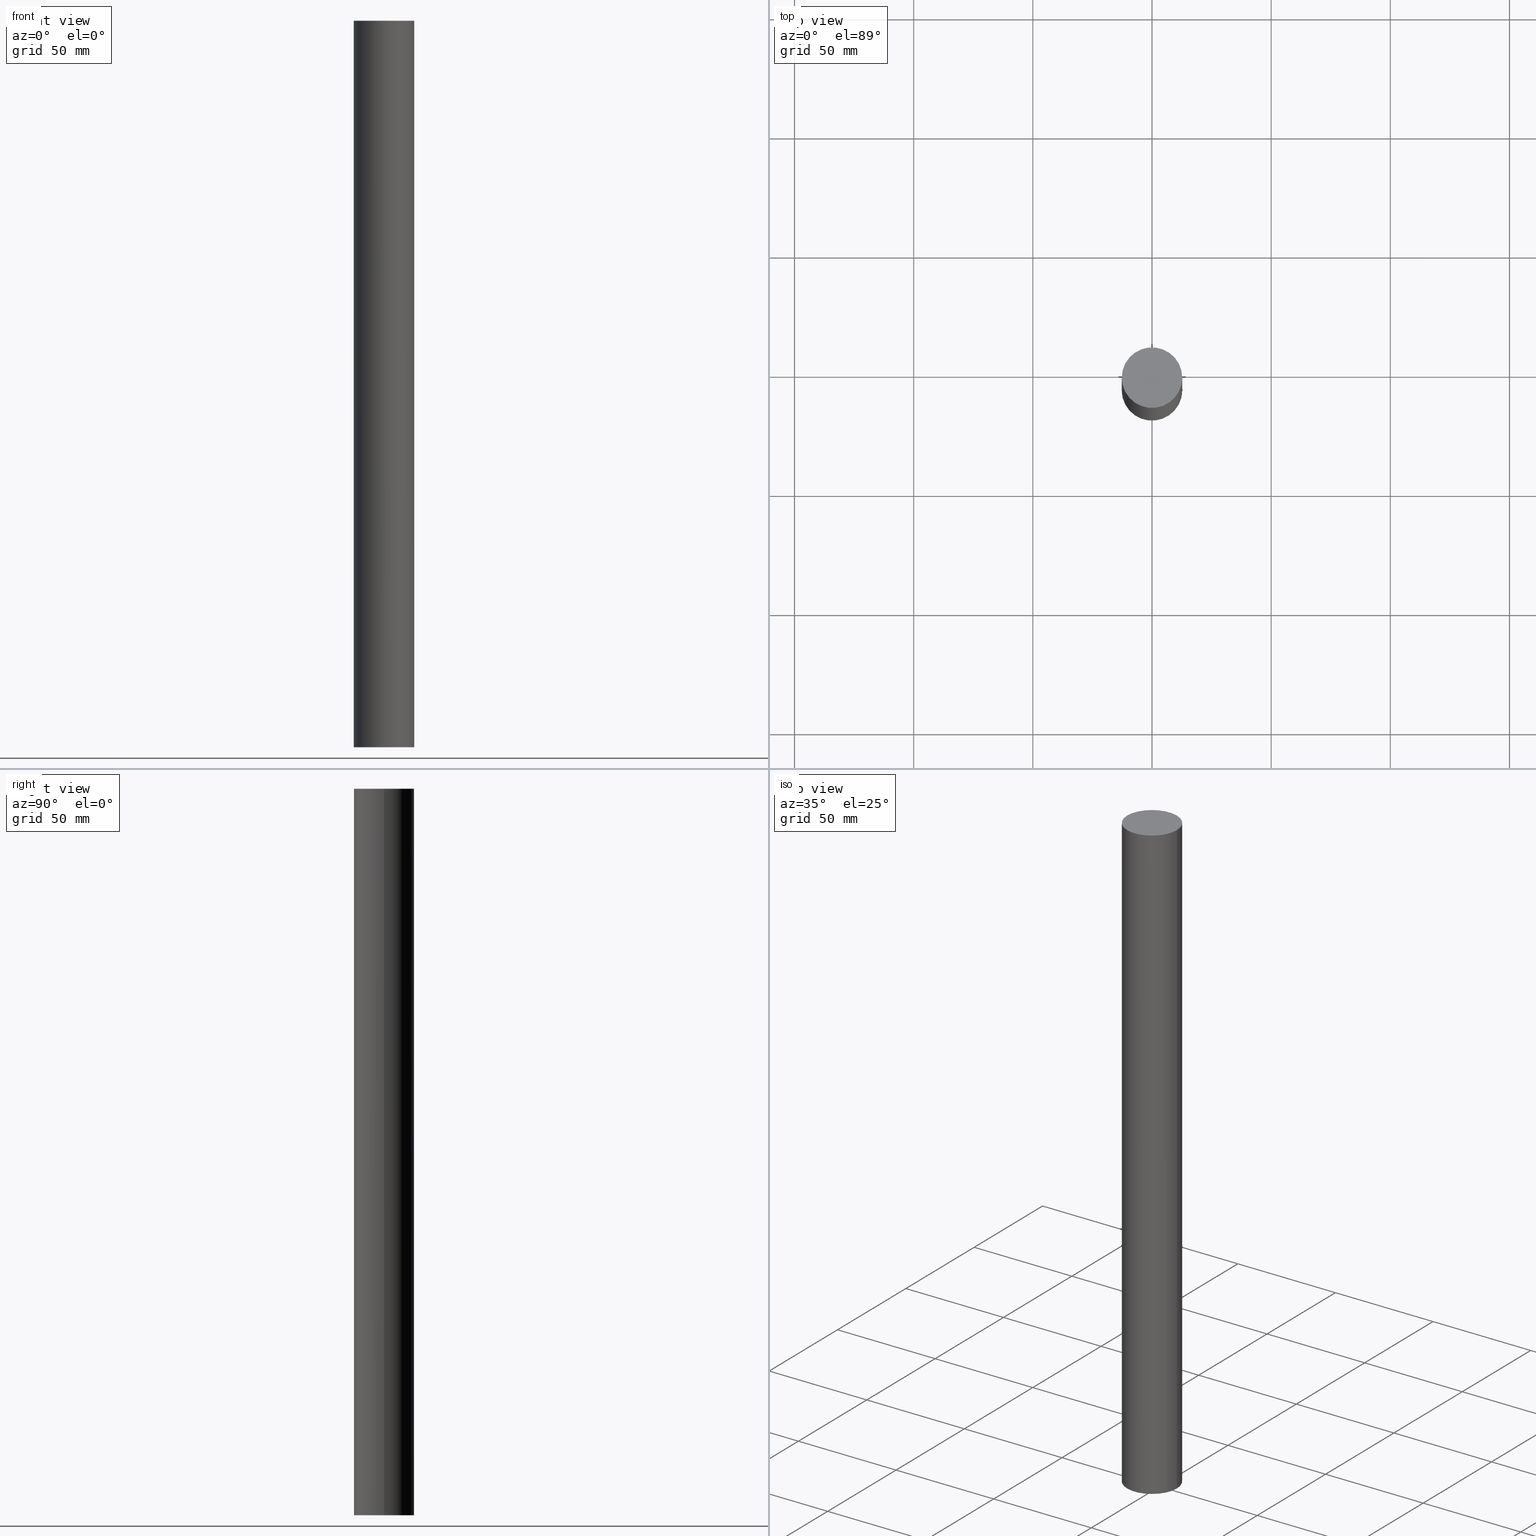
[diagram: canonical four-view strip — front | top / right | iso, engineering-drawing reading convention]
A machine part, canonical four-view strip (front | top / right | iso — engineering-drawing reading convention). The complete STEP part file that produces these views, byte-faithful:
ISO-10303-21;
HEADER;
FILE_DESCRIPTION (( 'STEP AP214' ),
    '1' );
FILE_NAME ('ShaftRailAssembly_9CEDDDFAA7.step',
    '2022-12-01T22:49:02',
    ( '' ),
    ( '' ),
    'SwSTEP 2.0',
    'SolidWorks 2019',
    '' );
FILE_SCHEMA (( 'AUTOMOTIVE_DESIGN' ));
ENDSEC;

DATA;
#1 = VERTEX_POINT ( 'NONE', #84 ) ;
#2 = SURFACE_STYLE_USAGE ( .BOTH. , #16 ) ;
#3 = AXIS2_PLACEMENT_3D ( 'NONE', #64, #136, #153 ) ;
#4 = PRODUCT_DEFINITION_FORMATION_WITH_SPECIFIED_SOURCE ( 'ANY', '', #106, .NOT_KNOWN. ) ;
#5 = DIRECTION ( 'NONE',  ( 0.000000000000000000, 0.000000000000000000, 1.000000000000000000 ) ) ;
#6 = CIRCLE ( 'NONE', #200, 0.5000000000000000000 ) ;
#7 = PRESENTATION_LAYER_ASSIGNMENT (  '', '', ( #267 ) ) ;
#8 = EDGE_CURVE ( 'NONE', #116, #52, #244, .T. ) ;
#9 = DIRECTION ( 'NONE',  ( 0.000000000000000000, 0.000000000000000000, 1.000000000000000000 ) ) ;
#10 = FILL_AREA_STYLE ('',( #257 ) ) ;
#11 = PLANE ( 'NONE',  #274 ) ;
#12 = FILL_AREA_STYLE ('',( #14 ) ) ;
#13 = APPLICATION_CONTEXT ( 'automotive_design' ) ;
#14 = FILL_AREA_STYLE_COLOUR ( '', #49 ) ;
#15 = ORIENTED_EDGE ( 'NONE', *, *, #71, .F. ) ;
#16 = SURFACE_SIDE_STYLE ('',( #145 ) ) ;
#17 =( LENGTH_UNIT ( ) NAMED_UNIT ( * ) SI_UNIT ( $, .METRE. ) );
#18 = MECHANICAL_DESIGN_GEOMETRIC_PRESENTATION_REPRESENTATION (  '', ( #162 ), #103 ) ;
#19 = CARTESIAN_POINT ( 'NONE',  ( 0.000000000000000000, 1.750000000000000000, 0.000000000000000000 ) ) ;
#20 =( NAMED_UNIT ( * ) SI_UNIT ( $, .STERADIAN. ) SOLID_ANGLE_UNIT ( ) );
#21 = SURFACE_SIDE_STYLE ('',( #157 ) ) ;
#22 =( NAMED_UNIT ( * ) SI_UNIT ( $, .STERADIAN. ) SOLID_ANGLE_UNIT ( ) );
#23 = VECTOR ( 'NONE', #179, 39.37007874015748143 ) ;
#24 =( NAMED_UNIT ( * ) SI_UNIT ( $, .STERADIAN. ) SOLID_ANGLE_UNIT ( ) );
#25 = PRODUCT_RELATED_PRODUCT_CATEGORY ( 'part', '', ( #106 ) ) ;
#26 = APPLICATION_CONTEXT ( 'automotive_design' ) ;
#27 = AXIS2_PLACEMENT_3D ( 'NONE', #250, #56, #146 ) ;
#28 = APPLICATION_PROTOCOL_DEFINITION ( 'draft international standard', 'automotive_design', 1998, #26 ) ;
#29 = SURFACE_STYLE_USAGE ( .BOTH. , #133 ) ;
#30 =( NAMED_UNIT ( * ) SI_UNIT ( $, .STERADIAN. ) SOLID_ANGLE_UNIT ( ) );
#31 = LENGTH_MEASURE_WITH_UNIT ( LENGTH_MEASURE( 0.02539999999999999897 ), #213 );
#32 = CIRCLE ( 'NONE', #194, 0.5000000000000000000 ) ;
#33 = STYLED_ITEM ( 'NONE', ( #147 ), #202 ) ;
#34 = LINE ( 'NONE', #99, #87 ) ;
#35 = EDGE_CURVE ( 'NONE', #1, #185, #6, .T. ) ;
#36 = CARTESIAN_POINT ( 'NONE',  ( -0.5000000000000000000, 1.750000000000000000, 0.000000000000000000 ) ) ;
#37 =( NAMED_UNIT ( * ) PLANE_ANGLE_UNIT ( ) SI_UNIT ( $, .RADIAN. ) );
#38 = APPLICATION_CONTEXT ( 'automotive_design' ) ;
#39 = PRODUCT_DEFINITION ( 'UNKNOWN', '', #46, #273 ) ;
#40 = CARTESIAN_POINT ( 'NONE',  ( 0.5000000000000000000, 1.750000000000000000, -11.99999999999999822 ) ) ;
#41 = PRODUCT_DEFINITION_CONTEXT ( 'detailed design', #13, 'design' ) ;
#42 = PRODUCT ( 'ShaftRailAssembly_9CEDDDFAA7', 'ShaftRailAssembly_9CEDDDFAA7', '', ( #108 ) ) ;
#43 = SHAPE_REPRESENTATION ( 'nHrZ377Nbn_CADModel_0', ( #265 ), #238 ) ;
#44 = PRODUCT_DEFINITION_SHAPE ( 'NONE', 'NONE',  #39 ) ;
#45 = CARTESIAN_POINT ( 'NONE',  ( 0.000000000000000000, 0.000000000000000000, 0.000000000000000000 ) ) ;
#46 = PRODUCT_DEFINITION_FORMATION_WITH_SPECIFIED_SOURCE ( 'ANY', '', #177, .NOT_KNOWN. ) ;
#47 = DIRECTION ( 'NONE',  ( 1.000000000000000000, 0.000000000000000000, -0.000000000000000000 ) ) ;
#48 = LENGTH_MEASURE_WITH_UNIT ( LENGTH_MEASURE( 0.02539999999999999897 ), #118 );
#49 = COLOUR_RGB ( '',0.7764705882352941346, 0.7764705882352941346, 0.8156862745098039102 ) ;
#50 = DIRECTION ( 'NONE',  ( 1.000000000000000000, 0.000000000000000000, 0.000000000000000000 ) ) ;
#51 = CARTESIAN_POINT ( 'NONE',  ( 0.000000000000000000, 1.750000000000000000, -11.99999999999999822 ) ) ;
#52 = VERTEX_POINT ( 'NONE', #36 ) ;
#53 =( NAMED_UNIT ( * ) PLANE_ANGLE_UNIT ( ) SI_UNIT ( $, .RADIAN. ) );
#54 = COLOUR_RGB ( '',0.8980392156862745390, 0.9176470588235293713, 0.9294117647058823817 ) ;
#55 = FACE_OUTER_BOUND ( 'NONE', #140, .T. ) ;
#56 = DIRECTION ( 'NONE',  ( 0.000000000000000000, 0.000000000000000000, 1.000000000000000000 ) ) ;
#57 = DIMENSIONAL_EXPONENTS ( 1.000000000000000000, 0.000000000000000000, 0.000000000000000000, 0.000000000000000000, 0.000000000000000000, 0.000000000000000000, 0.000000000000000000 ) ;
#58 = CARTESIAN_POINT ( 'NONE',  ( 0.000000000000000000, 1.750000000000000000, -11.99999999999999822 ) ) ;
#59 = SURFACE_STYLE_FILL_AREA ( #270 ) ;
#60 =( GEOMETRIC_REPRESENTATION_CONTEXT ( 3 ) GLOBAL_UNCERTAINTY_ASSIGNED_CONTEXT ( ( #189 ) ) GLOBAL_UNIT_ASSIGNED_CONTEXT ( ( #159, #221, #243 ) ) REPRESENTATION_CONTEXT ( 'NONE', 'WORKASPACE' ) );
#61 = LENGTH_MEASURE_WITH_UNIT ( LENGTH_MEASURE( 0.02539999999999999897 ), #216 );
#62 = DIMENSIONAL_EXPONENTS ( 1.000000000000000000, 0.000000000000000000, 0.000000000000000000, 0.000000000000000000, 0.000000000000000000, 0.000000000000000000, 0.000000000000000000 ) ;
#63 =( LENGTH_UNIT ( ) NAMED_UNIT ( * ) SI_UNIT ( $, .METRE. ) );
#64 = CARTESIAN_POINT ( 'NONE',  ( 0.000000000000000000, 1.750000000000000000, -11.99999999999999822 ) ) ;
#65 =( GEOMETRIC_REPRESENTATION_CONTEXT ( 3 ) GLOBAL_UNCERTAINTY_ASSIGNED_CONTEXT ( ( #209 ) ) GLOBAL_UNIT_ASSIGNED_CONTEXT ( ( #215, #128, #269 ) ) REPRESENTATION_CONTEXT ( 'NONE', 'WORKASPACE' ) );
#66 = CARTESIAN_POINT ( 'NONE',  ( 0.000000000000000000, 1.750000000000000000, 0.000000000000000000 ) ) ;
#67 = APPLICATION_PROTOCOL_DEFINITION ( 'draft international standard', 'automotive_design', 1998, #263 ) ;
#68 = FILL_AREA_STYLE_COLOUR ( '', #183 ) ;
#69 = DIRECTION ( 'NONE',  ( 0.000000000000000000, 0.000000000000000000, 1.000000000000000000 ) ) ;
#70 = PRESENTATION_STYLE_ASSIGNMENT (( #77 ) ) ;
#71 = EDGE_CURVE ( 'NONE', #185, #116, #34, .T. ) ;
#72 = COLOUR_RGB ( '',0.7764705882352941346, 0.7764705882352941346, 0.8156862745098039102 ) ;
#73 = AXIS2_PLACEMENT_3D ( 'NONE', #115, #69, #50 ) ;
#74 = LENGTH_MEASURE_WITH_UNIT ( LENGTH_MEASURE( 0.02539999999999999897 ), #97 );
#75 = ADVANCED_BREP_SHAPE_REPRESENTATION ( '', ( #235, #265 ), #238 ) ;
#76 = LENGTH_MEASURE_WITH_UNIT ( LENGTH_MEASURE( 0.02539999999999999897 ), #17 );
#77 = SURFACE_STYLE_USAGE ( .BOTH. , #224 ) ;
#78 = ORIENTED_EDGE ( 'NONE', *, *, #165, .T. ) ;
#79 = ADVANCED_FACE ( 'NONE', ( #55 ), #212, .T. ) ;
#80 = PRODUCT_DEFINITION_SHAPE ( 'NONE', 'NONE',  #186 ) ;
#81 = UNCERTAINTY_MEASURE_WITH_UNIT (LENGTH_MEASURE( 1.000000000000000082E-05 ), #121, 'distance_accuracy_value', 'NONE');
#82 =( GEOMETRIC_REPRESENTATION_CONTEXT ( 3 ) GLOBAL_UNCERTAINTY_ASSIGNED_CONTEXT ( ( #127 ) ) GLOBAL_UNIT_ASSIGNED_CONTEXT ( ( #246, #161, #30 ) ) REPRESENTATION_CONTEXT ( 'NONE', 'WORKASPACE' ) );
#83 = DIRECTION ( 'NONE',  ( 0.000000000000000000, 0.000000000000000000, 1.000000000000000000 ) ) ;
#84 = CARTESIAN_POINT ( 'NONE',  ( -0.5000000000000000000, 1.750000000000000000, -11.99999999999999822 ) ) ;
#85 = DIMENSIONAL_EXPONENTS ( 1.000000000000000000, 0.000000000000000000, 0.000000000000000000, 0.000000000000000000, 0.000000000000000000, 0.000000000000000000, 0.000000000000000000 ) ;
#86 = APPLICATION_CONTEXT ( 'automotive_design' ) ;
#87 = VECTOR ( 'NONE', #268, 39.37007874015748143 ) ;
#88 = DIRECTION ( 'NONE',  ( 1.000000000000000000, 0.000000000000000000, 0.000000000000000000 ) ) ;
#89 = SHAPE_DEFINITION_REPRESENTATION ( #80, #259 ) ;
#90 = APPLICATION_PROTOCOL_DEFINITION ( 'draft international standard', 'automotive_design', 1998, #86 ) ;
#91 = CARTESIAN_POINT ( 'NONE',  ( -0.5000000000000000000, 1.750000000000000000, -11.99999999999999822 ) ) ;
#92 = PRODUCT_DEFINITION ( 'UNKNOWN', '', #4, #101 ) ;
#93 = CYLINDRICAL_SURFACE ( 'NONE', #73, 0.5000000000000000000 ) ;
#94 = FACE_OUTER_BOUND ( 'NONE', #120, .T. ) ;
#95 =( REPRESENTATION_RELATIONSHIP ('NONE','NONE', #259, #43 ) REPRESENTATION_RELATIONSHIP_WITH_TRANSFORMATION ( #264 )SHAPE_REPRESENTATION_RELATIONSHIP( ) );
#96 = COLOUR_RGB ( '',0.8980392156862745390, 0.9176470588235293713, 0.9294117647058823817 ) ;
#97 =( LENGTH_UNIT ( ) NAMED_UNIT ( * ) SI_UNIT ( $, .METRE. ) );
#98 = DIMENSIONAL_EXPONENTS ( 1.000000000000000000, 0.000000000000000000, 0.000000000000000000, 0.000000000000000000, 0.000000000000000000, 0.000000000000000000, 0.000000000000000000 ) ;
#99 = CARTESIAN_POINT ( 'NONE',  ( 0.5000000000000000000, 1.750000000000000000, -11.99999999999999822 ) ) ;
#100 = LENGTH_MEASURE_WITH_UNIT ( LENGTH_MEASURE( 0.02539999999999999897 ), #126 );
#101 = PRODUCT_DEFINITION_CONTEXT ( 'detailed design', #38, 'design' ) ;
#102 = SURFACE_STYLE_USAGE ( .BOTH. , #214 ) ;
#103 =( GEOMETRIC_REPRESENTATION_CONTEXT ( 3 ) GLOBAL_UNCERTAINTY_ASSIGNED_CONTEXT ( ( #180 ) ) GLOBAL_UNIT_ASSIGNED_CONTEXT ( ( #171, #37, #122 ) ) REPRESENTATION_CONTEXT ( 'NONE', 'WORKASPACE' ) );
#104 = EDGE_LOOP ( 'NONE', ( #204, #229 ) ) ;
#105 = LENGTH_MEASURE_WITH_UNIT ( LENGTH_MEASURE( 0.02539999999999999897 ), #123 );
#106 = PRODUCT ( 'nHrZ377Nbn_CADModel_0', 'nHrZ377Nbn_CADModel_0', '', ( #217 ) ) ;
#107 = LINE ( 'NONE', #91, #23 ) ;
#108 = PRODUCT_CONTEXT ( 'NONE', #119, 'mechanical' ) ;
#109 = UNCERTAINTY_MEASURE_WITH_UNIT (LENGTH_MEASURE( 1.000000000000000082E-05 ), #114, 'distance_accuracy_value', 'NONE');
#110 = FACE_OUTER_BOUND ( 'NONE', #104, .T. ) ;
#111 =( NAMED_UNIT ( * ) PLANE_ANGLE_UNIT ( ) SI_UNIT ( $, .RADIAN. ) );
#112 = ORIENTED_EDGE ( 'NONE', *, *, #8, .T. ) ;
#113 = ADVANCED_FACE ( 'NONE', ( #110 ), #193, .F. ) ;
#114 =( CONVERSION_BASED_UNIT ( 'INCH', #74 ) LENGTH_UNIT ( ) NAMED_UNIT ( #271 ) );
#115 = CARTESIAN_POINT ( 'NONE',  ( 0.000000000000000000, 1.750000000000000000, -11.99999999999999822 ) ) ;
#116 = VERTEX_POINT ( 'NONE', #236 ) ;
#117 =( GEOMETRIC_REPRESENTATION_CONTEXT ( 3 ) GLOBAL_UNCERTAINTY_ASSIGNED_CONTEXT ( ( #251 ) ) GLOBAL_UNIT_ASSIGNED_CONTEXT ( ( #240, #124, #22 ) ) REPRESENTATION_CONTEXT ( 'NONE', 'WORKASPACE' ) );
#118 =( LENGTH_UNIT ( ) NAMED_UNIT ( * ) SI_UNIT ( $, .METRE. ) );
#119 = APPLICATION_CONTEXT ( 'automotive_design' ) ;
#120 = EDGE_LOOP ( 'NONE', ( #112, #78 ) ) ;
#121 =( CONVERSION_BASED_UNIT ( 'INCH', #234 ) LENGTH_UNIT ( ) NAMED_UNIT ( #85 ) );
#122 =( NAMED_UNIT ( * ) SI_UNIT ( $, .STERADIAN. ) SOLID_ANGLE_UNIT ( ) );
#123 =( LENGTH_UNIT ( ) NAMED_UNIT ( * ) SI_UNIT ( $, .METRE. ) );
#124 =( NAMED_UNIT ( * ) PLANE_ANGLE_UNIT ( ) SI_UNIT ( $, .RADIAN. ) );
#125 = CARTESIAN_POINT ( 'NONE',  ( 0.000000000000000000, 1.750000000000000000, -11.99999999999999822 ) ) ;
#126 =( LENGTH_UNIT ( ) NAMED_UNIT ( * ) SI_UNIT ( $, .METRE. ) );
#127 = UNCERTAINTY_MEASURE_WITH_UNIT (LENGTH_MEASURE( 1.000000000000000082E-05 ), #246, 'distance_accuracy_value', 'NONE');
#128 =( NAMED_UNIT ( * ) PLANE_ANGLE_UNIT ( ) SI_UNIT ( $, .RADIAN. ) );
#129 = FACE_OUTER_BOUND ( 'NONE', #247, .T. ) ;
#130 = COLOUR_RGB ( '',0.7764705882352941346, 0.7764705882352941346, 0.8156862745098039102 ) ;
#131 = DIRECTION ( 'NONE',  ( 0.000000000000000000, 0.000000000000000000, 1.000000000000000000 ) ) ;
#132 = DIRECTION ( 'NONE',  ( 1.000000000000000000, 0.000000000000000000, 0.000000000000000000 ) ) ;
#133 = SURFACE_SIDE_STYLE ('',( #181 ) ) ;
#134 =( GEOMETRIC_REPRESENTATION_CONTEXT ( 3 ) GLOBAL_UNCERTAINTY_ASSIGNED_CONTEXT ( ( #109 ) ) GLOBAL_UNIT_ASSIGNED_CONTEXT ( ( #114, #111, #182 ) ) REPRESENTATION_CONTEXT ( 'NONE', 'WORKASPACE' ) );
#135 = PRODUCT_CONTEXT ( 'NONE', #263, 'mechanical' ) ;
#136 = DIRECTION ( 'NONE',  ( 0.000000000000000000, 0.000000000000000000, 1.000000000000000000 ) ) ;
#137 = PRODUCT_RELATED_PRODUCT_CATEGORY ( 'part', '', ( #42 ) ) ;
#138 = SURFACE_SIDE_STYLE ('',( #205 ) ) ;
#139 = AXIS2_PLACEMENT_3D ( 'NONE', #45, #131, #132 ) ;
#140 = EDGE_LOOP ( 'NONE', ( #187, #225, #210, #174 ) ) ;
#141 = FILL_AREA_STYLE_COLOUR ( '', #54 ) ;
#142 = DIRECTION ( 'NONE',  ( 1.000000000000000000, 0.000000000000000000, 0.000000000000000000 ) ) ;
#143 = AXIS2_PLACEMENT_3D ( 'NONE', #58, #9, #88 ) ;
#144 = DIRECTION ( 'NONE',  ( 1.000000000000000000, 0.000000000000000000, 0.000000000000000000 ) ) ;
#145 = SURFACE_STYLE_FILL_AREA ( #149 ) ;
#146 = DIRECTION ( 'NONE',  ( 1.000000000000000000, 0.000000000000000000, 0.000000000000000000 ) ) ;
#147 = PRESENTATION_STYLE_ASSIGNMENT (( #29 ) ) ;
#148 = PRESENTATION_STYLE_ASSIGNMENT (( #102 ) ) ;
#149 = FILL_AREA_STYLE ('',( #208 ) ) ;
#150 = PRESENTATION_LAYER_ASSIGNMENT (  '', '', ( #188 ) ) ;
#151 = SURFACE_STYLE_USAGE ( .BOTH. , #21 ) ;
#152 = PRESENTATION_STYLE_ASSIGNMENT (( #2 ) ) ;
#153 = DIRECTION ( 'NONE',  ( 1.000000000000000000, 0.000000000000000000, -0.000000000000000000 ) ) ;
#154 = PRODUCT_DEFINITION_SHAPE ( 'NONE', 'NONE',  #276 ) ;
#155 =( NAMED_UNIT ( * ) PLANE_ANGLE_UNIT ( ) SI_UNIT ( $, .RADIAN. ) );
#156 = FILL_AREA_STYLE ('',( #68 ) ) ;
#157 = SURFACE_STYLE_FILL_AREA ( #10 ) ;
#158 = PRODUCT_DEFINITION_FORMATION_WITH_SPECIFIED_SOURCE ( 'ANY', '', #42, .NOT_KNOWN. ) ;
#159 =( CONVERSION_BASED_UNIT ( 'INCH', #31 ) LENGTH_UNIT ( ) NAMED_UNIT ( #172 ) );
#160 = ORIENTED_EDGE ( 'NONE', *, *, #170, .T. ) ;
#161 =( NAMED_UNIT ( * ) PLANE_ANGLE_UNIT ( ) SI_UNIT ( $, .RADIAN. ) );
#162 = STYLED_ITEM ( 'NONE', ( #148 ), #79 ) ;
#163 = MECHANICAL_DESIGN_GEOMETRIC_PRESENTATION_REPRESENTATION (  '', ( #188 ), #134 ) ;
#164 = CARTESIAN_POINT ( 'NONE',  ( 0.000000000000000000, 1.750000000000000000, 0.000000000000000000 ) ) ;
#165 = EDGE_CURVE ( 'NONE', #52, #116, #32, .T. ) ;
#166 = PRODUCT_DEFINITION_SHAPE ( 'NONE', 'NONE',  #92 ) ;
#167 = ORIENTED_EDGE ( 'NONE', *, *, #8, .F. ) ;
#168 = PRESENTATION_LAYER_ASSIGNMENT (  '', '', ( #255 ) ) ;
#169 = SHAPE_REPRESENTATION_RELATIONSHIP ( 'NONE' , 'NONE' ,  #43, #75 ) ;
#170 = EDGE_CURVE ( 'NONE', #1, #52, #107, .T. ) ;
#171 =( CONVERSION_BASED_UNIT ( 'INCH', #76 ) LENGTH_UNIT ( ) NAMED_UNIT ( #192 ) );
#172 = DIMENSIONAL_EXPONENTS ( 1.000000000000000000, 0.000000000000000000, 0.000000000000000000, 0.000000000000000000, 0.000000000000000000, 0.000000000000000000, 0.000000000000000000 ) ;
#173 = DIRECTION ( 'NONE',  ( 1.000000000000000000, 0.000000000000000000, 0.000000000000000000 ) ) ;
#174 = ORIENTED_EDGE ( 'NONE', *, *, #165, .F. ) ;
#175 = DIRECTION ( 'NONE',  ( 0.000000000000000000, 0.000000000000000000, 1.000000000000000000 ) ) ;
#176 = AXIS2_PLACEMENT_3D ( 'NONE', #219, #5, #237 ) ;
#177 = PRODUCT ( 'nHrZ377Nbn_CADModel_0', 'nHrZ377Nbn_CADModel_0', '', ( #135 ) ) ;
#178 = DIRECTION ( 'NONE',  ( 1.000000000000000000, 0.000000000000000000, 0.000000000000000000 ) ) ;
#179 = DIRECTION ( 'NONE',  ( 0.000000000000000000, 0.000000000000000000, 1.000000000000000000 ) ) ;
#180 = UNCERTAINTY_MEASURE_WITH_UNIT (LENGTH_MEASURE( 1.000000000000000082E-05 ), #171, 'distance_accuracy_value', 'NONE');
#181 = SURFACE_STYLE_FILL_AREA ( #156 ) ;
#182 =( NAMED_UNIT ( * ) SI_UNIT ( $, .STERADIAN. ) SOLID_ANGLE_UNIT ( ) );
#183 = COLOUR_RGB ( '',0.7764705882352941346, 0.7764705882352941346, 0.8156862745098039102 ) ;
#184 = DIRECTION ( 'NONE',  ( 0.000000000000000000, 0.000000000000000000, 1.000000000000000000 ) ) ;
#185 = VERTEX_POINT ( 'NONE', #40 ) ;
#186 = PRODUCT_DEFINITION ( 'UNKNOWN', '', #158, #41 ) ;
#187 = ORIENTED_EDGE ( 'NONE', *, *, #170, .F. ) ;
#188 = STYLED_ITEM ( 'NONE', ( #242 ), #235 ) ;
#189 = UNCERTAINTY_MEASURE_WITH_UNIT (LENGTH_MEASURE( 1.000000000000000082E-05 ), #159, 'distance_accuracy_value', 'NONE');
#190 = DIRECTION ( 'NONE',  ( 1.000000000000000000, 0.000000000000000000, 0.000000000000000000 ) ) ;
#191 = DIRECTION ( 'NONE',  ( 0.000000000000000000, 0.000000000000000000, 1.000000000000000000 ) ) ;
#192 = DIMENSIONAL_EXPONENTS ( 1.000000000000000000, 0.000000000000000000, 0.000000000000000000, 0.000000000000000000, 0.000000000000000000, 0.000000000000000000, 0.000000000000000000 ) ;
#193 = PLANE ( 'NONE',  #3 ) ;
#194 = AXIS2_PLACEMENT_3D ( 'NONE', #66, #198, #178 ) ;
#195 = PRESENTATION_LAYER_ASSIGNMENT (  '', '', ( #256 ) ) ;
#196 = APPLICATION_PROTOCOL_DEFINITION ( 'draft international standard', 'automotive_design', 1998, #13 ) ;
#197 = CONTEXT_DEPENDENT_SHAPE_REPRESENTATION ( #95, #154 ) ;
#198 = DIRECTION ( 'NONE',  ( 0.000000000000000000, 0.000000000000000000, 1.000000000000000000 ) ) ;
#199 = AXIS2_PLACEMENT_3D ( 'NONE', #275, #83, #173 ) ;
#200 = AXIS2_PLACEMENT_3D ( 'NONE', #125, #252, #190 ) ;
#201 = PRESENTATION_LAYER_ASSIGNMENT (  '', '', ( #33 ) ) ;
#202 = ADVANCED_FACE ( 'NONE', ( #129 ), #93, .T. ) ;
#203 =( GEOMETRIC_REPRESENTATION_CONTEXT ( 3 ) GLOBAL_UNCERTAINTY_ASSIGNED_CONTEXT ( ( #239 ) ) GLOBAL_UNIT_ASSIGNED_CONTEXT ( ( #253, #155, #24 ) ) REPRESENTATION_CONTEXT ( 'NONE', 'WORKASPACE' ) );
#204 = ORIENTED_EDGE ( 'NONE', *, *, #258, .F. ) ;
#205 = SURFACE_STYLE_FILL_AREA ( #226 ) ;
#206 = ADVANCED_FACE ( 'NONE', ( #94 ), #11, .T. ) ;
#207 = DIRECTION ( 'NONE',  ( 0.000000000000000000, 0.000000000000000000, 1.000000000000000000 ) ) ;
#208 = FILL_AREA_STYLE_COLOUR ( '', #96 ) ;
#209 = UNCERTAINTY_MEASURE_WITH_UNIT (LENGTH_MEASURE( 1.000000000000000082E-05 ), #215, 'distance_accuracy_value', 'NONE');
#210 = ORIENTED_EDGE ( 'NONE', *, *, #71, .T. ) ;
#211 = AXIS2_PLACEMENT_3D ( 'NONE', #19, #207, #142 ) ;
#212 = CYLINDRICAL_SURFACE ( 'NONE', #143, 0.5000000000000000000 ) ;
#213 =( LENGTH_UNIT ( ) NAMED_UNIT ( * ) SI_UNIT ( $, .METRE. ) );
#214 = SURFACE_SIDE_STYLE ('',( #59 ) ) ;
#215 =( CONVERSION_BASED_UNIT ( 'INCH', #100 ) LENGTH_UNIT ( ) NAMED_UNIT ( #98 ) );
#216 =( LENGTH_UNIT ( ) NAMED_UNIT ( * ) SI_UNIT ( $, .METRE. ) );
#217 = PRODUCT_CONTEXT ( 'NONE', #26, 'mechanical' ) ;
#218 = CIRCLE ( 'NONE', #241, 0.5000000000000000000 ) ;
#219 = CARTESIAN_POINT ( 'NONE',  ( 0.000000000000000000, 0.000000000000000000, 0.000000000000000000 ) ) ;
#220 = APPLICATION_PROTOCOL_DEFINITION ( 'draft international standard', 'automotive_design', 1998, #38 ) ;
#221 =( NAMED_UNIT ( * ) PLANE_ANGLE_UNIT ( ) SI_UNIT ( $, .RADIAN. ) );
#222 = SURFACE_STYLE_FILL_AREA ( #12 ) ;
#223 = SURFACE_STYLE_USAGE ( .BOTH. , #138 ) ;
#224 = SURFACE_SIDE_STYLE ('',( #222 ) ) ;
#225 = ORIENTED_EDGE ( 'NONE', *, *, #35, .T. ) ;
#226 = FILL_AREA_STYLE ('',( #141 ) ) ;
#227 = CLOSED_SHELL ( 'NONE', ( #202, #79, #113, #206 ) ) ;
#228 = DIRECTION ( 'NONE',  ( 1.000000000000000000, 0.000000000000000000, 0.000000000000000000 ) ) ;
#229 = ORIENTED_EDGE ( 'NONE', *, *, #35, .F. ) ;
#230 = FILL_AREA_STYLE_COLOUR ( '', #72 ) ;
#231 = MECHANICAL_DESIGN_GEOMETRIC_PRESENTATION_REPRESENTATION (  '', ( #267 ), #82 ) ;
#232 = PRODUCT_RELATED_PRODUCT_CATEGORY ( 'part', '', ( #177 ) ) ;
#233 = PRESENTATION_STYLE_ASSIGNMENT (( #151 ) ) ;
#234 = LENGTH_MEASURE_WITH_UNIT ( LENGTH_MEASURE( 0.02539999999999999897 ), #63 );
#235 = MANIFOLD_SOLID_BREP ( 'S0_a_shaft-1/S0_a_shaft-1-solid1', #227 ) ;
#236 = CARTESIAN_POINT ( 'NONE',  ( 0.5000000000000000000, 1.750000000000000000, 0.000000000000000000 ) ) ;
#237 = DIRECTION ( 'NONE',  ( 1.000000000000000000, 0.000000000000000000, 0.000000000000000000 ) ) ;
#238 =( GEOMETRIC_REPRESENTATION_CONTEXT ( 3 ) GLOBAL_UNCERTAINTY_ASSIGNED_CONTEXT ( ( #81 ) ) GLOBAL_UNIT_ASSIGNED_CONTEXT ( ( #121, #53, #20 ) ) REPRESENTATION_CONTEXT ( 'NONE', 'WORKASPACE' ) );
#239 = UNCERTAINTY_MEASURE_WITH_UNIT (LENGTH_MEASURE( 1.000000000000000082E-05 ), #253, 'distance_accuracy_value', 'NONE');
#240 =( CONVERSION_BASED_UNIT ( 'INCH', #61 ) LENGTH_UNIT ( ) NAMED_UNIT ( #57 ) );
#241 = AXIS2_PLACEMENT_3D ( 'NONE', #51, #175, #228 ) ;
#242 = PRESENTATION_STYLE_ASSIGNMENT (( #223 ) ) ;
#243 =( NAMED_UNIT ( * ) SI_UNIT ( $, .STERADIAN. ) SOLID_ANGLE_UNIT ( ) );
#244 = CIRCLE ( 'NONE', #211, 0.5000000000000000000 ) ;
#245 = MECHANICAL_DESIGN_GEOMETRIC_PRESENTATION_REPRESENTATION (  '', ( #33 ), #60 ) ;
#246 =( CONVERSION_BASED_UNIT ( 'INCH', #48 ) LENGTH_UNIT ( ) NAMED_UNIT ( #254 ) );
#247 = EDGE_LOOP ( 'NONE', ( #266, #160, #167, #15 ) ) ;
#248 = PRESENTATION_LAYER_ASSIGNMENT (  '', '', ( #162 ) ) ;
#249 = CARTESIAN_POINT ( 'NONE',  ( 0.000000000000000000, 0.000000000000000000, 0.000000000000000000 ) ) ;
#250 = CARTESIAN_POINT ( 'NONE',  ( 0.000000000000000000, 0.000000000000000000, 0.000000000000000000 ) ) ;
#251 = UNCERTAINTY_MEASURE_WITH_UNIT (LENGTH_MEASURE( 1.000000000000000082E-05 ), #240, 'distance_accuracy_value', 'NONE');
#252 = DIRECTION ( 'NONE',  ( 0.000000000000000000, 0.000000000000000000, 1.000000000000000000 ) ) ;
#253 =( CONVERSION_BASED_UNIT ( 'INCH', #105 ) LENGTH_UNIT ( ) NAMED_UNIT ( #62 ) );
#254 = DIMENSIONAL_EXPONENTS ( 1.000000000000000000, 0.000000000000000000, 0.000000000000000000, 0.000000000000000000, 0.000000000000000000, 0.000000000000000000, 0.000000000000000000 ) ;
#255 = STYLED_ITEM ( 'NONE', ( #233 ), #113 ) ;
#256 = STYLED_ITEM ( 'NONE', ( #152 ), #75 ) ;
#257 = FILL_AREA_STYLE_COLOUR ( '', #130 ) ;
#258 = EDGE_CURVE ( 'NONE', #185, #1, #218, .T. ) ;
#259 = SHAPE_REPRESENTATION ( 'ShaftRailAssembly_9CEDDDFAA7', ( #139, #27 ), #203 ) ;
#260 = MECHANICAL_DESIGN_GEOMETRIC_PRESENTATION_REPRESENTATION (  '', ( #256 ), #65 ) ;
#261 = APPLICATION_PROTOCOL_DEFINITION ( 'draft international standard', 'automotive_design', 1998, #119 ) ;
#262 = SHAPE_DEFINITION_REPRESENTATION ( #44, #43 ) ;
#263 = APPLICATION_CONTEXT ( 'automotive_design' ) ;
#264 = ITEM_DEFINED_TRANSFORMATION ( 'NONE', 'NONE', #27,  #265 ) ;
#265 = AXIS2_PLACEMENT_3D ( 'NONE', #249, #191, #144 ) ;
#266 = ORIENTED_EDGE ( 'NONE', *, *, #258, .T. ) ;
#267 = STYLED_ITEM ( 'NONE', ( #70 ), #206 ) ;
#268 = DIRECTION ( 'NONE',  ( 0.000000000000000000, 0.000000000000000000, 1.000000000000000000 ) ) ;
#269 =( NAMED_UNIT ( * ) SI_UNIT ( $, .STERADIAN. ) SOLID_ANGLE_UNIT ( ) );
#270 = FILL_AREA_STYLE ('',( #230 ) ) ;
#271 = DIMENSIONAL_EXPONENTS ( 1.000000000000000000, 0.000000000000000000, 0.000000000000000000, 0.000000000000000000, 0.000000000000000000, 0.000000000000000000, 0.000000000000000000 ) ;
#272 = MECHANICAL_DESIGN_GEOMETRIC_PRESENTATION_REPRESENTATION (  '', ( #255 ), #117 ) ;
#273 = PRODUCT_DEFINITION_CONTEXT ( 'detailed design', #86, 'design' ) ;
#274 = AXIS2_PLACEMENT_3D ( 'NONE', #164, #184, #47 ) ;
#275 = CARTESIAN_POINT ( 'NONE',  ( 0.000000000000000000, 0.000000000000000000, 0.000000000000000000 ) ) ;
#276 = NEXT_ASSEMBLY_USAGE_OCCURRENCE ( 'NAUO1', ' ', ' ', #186, #39, $ ) ;
ENDSEC;
END-ISO-10303-21;
